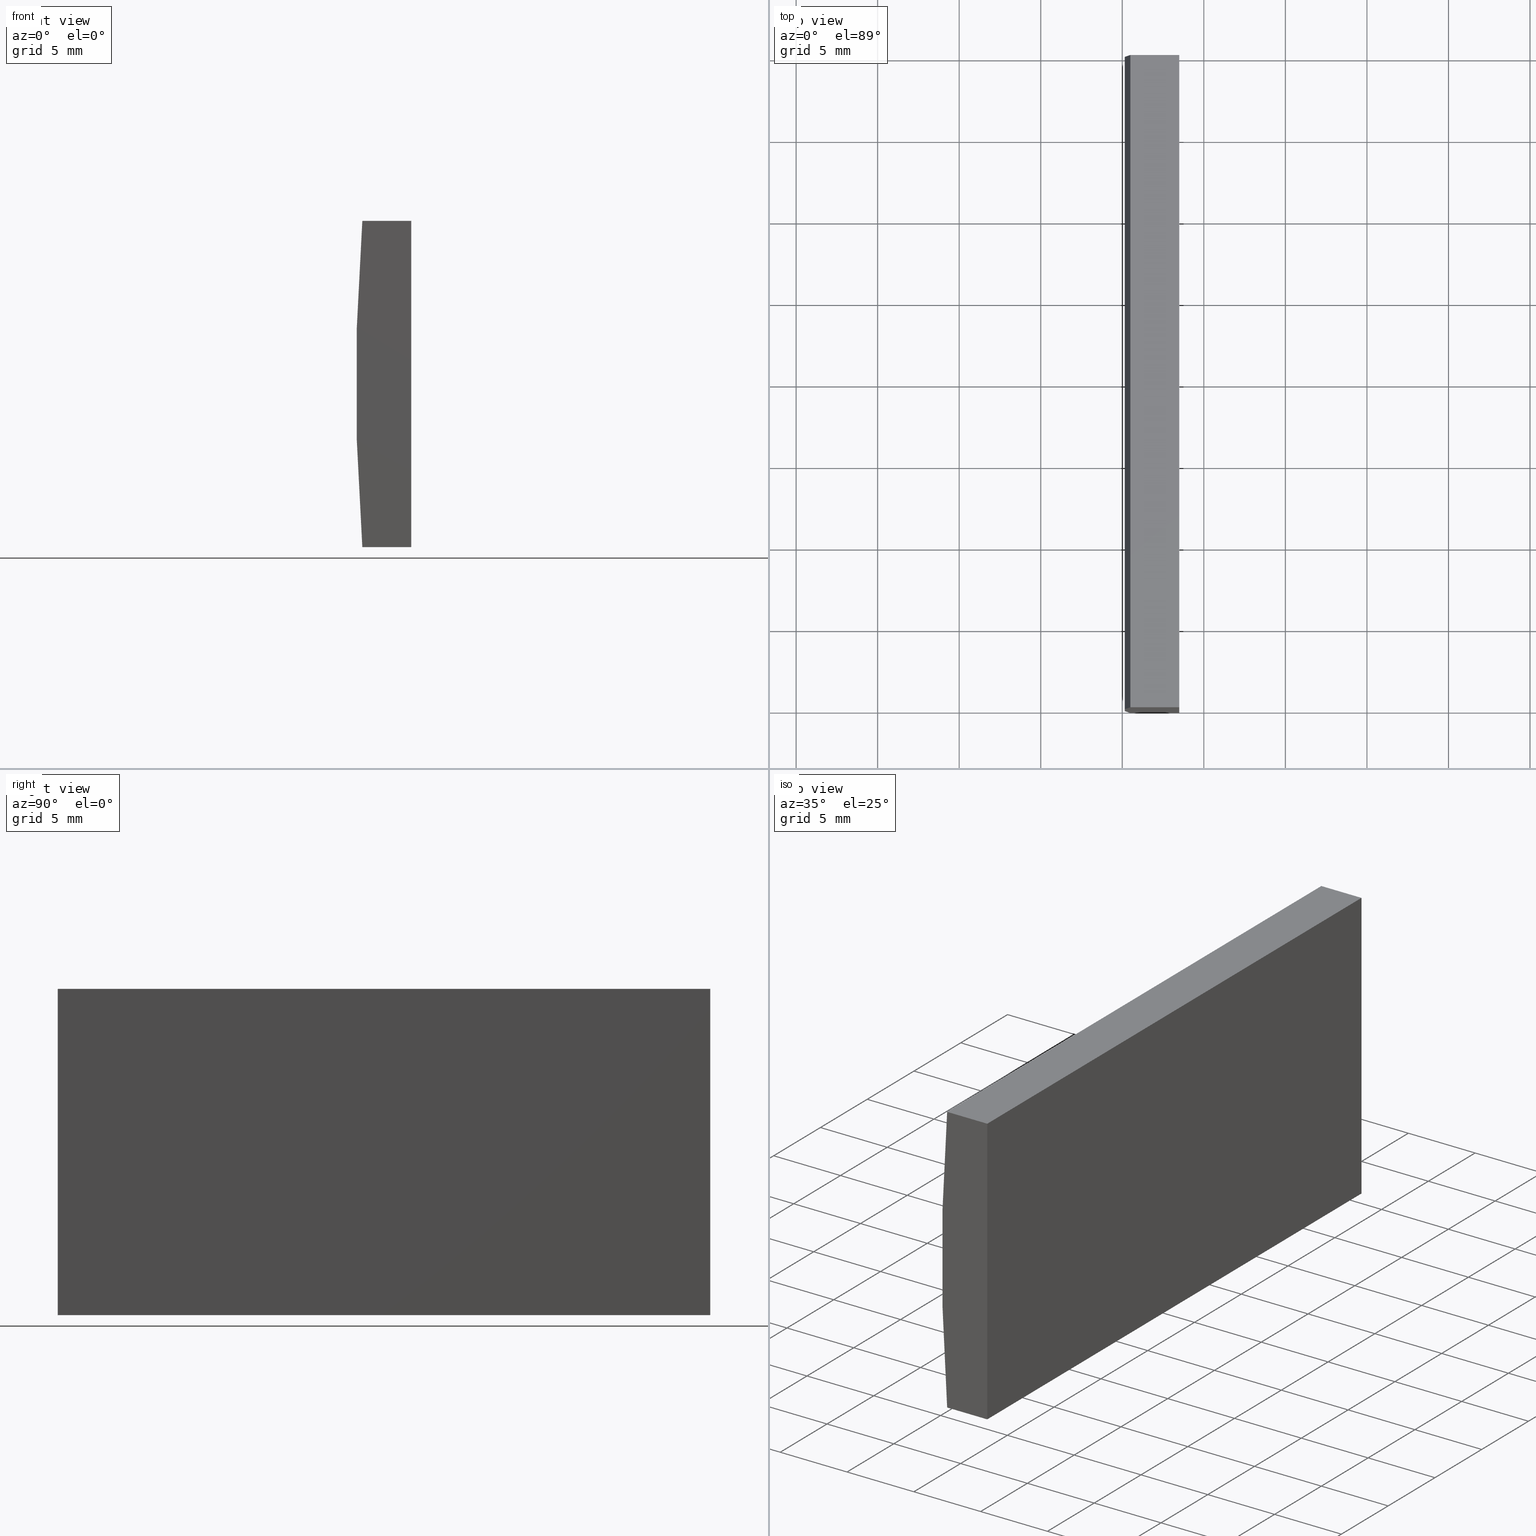
[diagram: canonical four-view strip — front | top / right | iso, engineering-drawing reading convention]
A machine part, canonical four-view strip (front | top / right | iso — engineering-drawing reading convention). The complete STEP part file that produces these views, byte-faithful:
ISO-10303-21;
HEADER;
FILE_DESCRIPTION (( 'STEP AP214' ),
    '1' );
FILE_NAME ('155052.STEP',
    '2019-06-18T06:18:10',
    ( 'user' ),
    ( '΢���й�' ),
    'SwSTEP 2.0',
    'SolidWorks 2016',
    '' );
FILE_SCHEMA (( 'AUTOMOTIVE_DESIGN' ));
ENDSEC;

DATA;
#1 =( NAMED_UNIT ( * ) SI_UNIT ( $, .STERADIAN. ) SOLID_ANGLE_UNIT ( ) );
#2 =( NAMED_UNIT ( * ) PLANE_ANGLE_UNIT ( ) SI_UNIT ( $, .RADIAN. ) );
#3 =( GEOMETRIC_REPRESENTATION_CONTEXT ( 3 ) GLOBAL_UNCERTAINTY_ASSIGNED_CONTEXT ( ( #94 ) ) GLOBAL_UNIT_ASSIGNED_CONTEXT ( ( #161, #26, #1 ) ) REPRESENTATION_CONTEXT ( 'NONE', 'WORKASPACE' ) );
#4 = CARTESIAN_POINT ( 'NONE',  ( -124.5073678108264800, 0.0000000000000000000, 10.00000000000000000 ) ) ;
#5 = EDGE_LOOP ( 'NONE', ( #71, #97, #165, #143 ) ) ;
#6 = ADVANCED_FACE ( 'NONE', ( #111 ), #149, .F. ) ;
#7 = DIRECTION ( 'NONE',  ( 0.0000000000000000000, 0.0000000000000000000, 1.000000000000000000 ) ) ;
#8 =( GEOMETRIC_REPRESENTATION_CONTEXT ( 3 ) GLOBAL_UNCERTAINTY_ASSIGNED_CONTEXT ( ( #188 ) ) GLOBAL_UNIT_ASSIGNED_CONTEXT ( ( #117, #13, #60 ) ) REPRESENTATION_CONTEXT ( 'NONE', 'WORKASPACE' ) );
#9 = VERTEX_POINT ( 'NONE', #43 ) ;
#10 = LINE ( 'NONE', #4, #156 ) ;
#11 = CARTESIAN_POINT ( 'NONE',  ( -121.5047956651487300, 40.00000000000000000, -9.999999999999985800 ) ) ;
#12 = APPLICATION_CONTEXT ( 'automotive_design' ) ;
#13 =( NAMED_UNIT ( * ) PLANE_ANGLE_UNIT ( ) SI_UNIT ( $, .RADIAN. ) );
#14 = CARTESIAN_POINT ( 'NONE',  ( -124.5073678108264900, 0.0000000000000000000, -10.00000000000000000 ) ) ;
#15 = SURFACE_STYLE_FILL_AREA ( #125 ) ;
#16 = AXIS2_PLACEMENT_3D ( 'NONE', #196, #189, #63 ) ;
#17 = DIRECTION ( 'NONE',  ( -0.0000000000000000000, -1.000000000000000000, -0.0000000000000000000 ) ) ;
#18 = DIRECTION ( 'NONE',  ( 0.0000000000000000000, -0.0000000000000000000, 1.000000000000000000 ) ) ;
#19 = DIRECTION ( 'NONE',  ( 0.0000000000000000000, 1.000000000000000000, 0.0000000000000000000 ) ) ;
#20 = VERTEX_POINT ( 'NONE', #109 ) ;
#21 = PRODUCT_RELATED_PRODUCT_CATEGORY ( 'part', '', ( #173 ) ) ;
#22 = CARTESIAN_POINT ( 'NONE',  ( -124.5073678108264900, 40.00000000000000000, -10.00000000000000000 ) ) ;
#23 = LINE ( 'NONE', #78, #187 ) ;
#24 = PRODUCT_DEFINITION_FORMATION_WITH_SPECIFIED_SOURCE ( '�κ�', '', #173, .NOT_KNOWN. ) ;
#25 = CIRCLE ( 'NONE', #193, 129.2500000000000000 ) ;
#26 =( NAMED_UNIT ( * ) PLANE_ANGLE_UNIT ( ) SI_UNIT ( $, .RADIAN. ) );
#27 =( NAMED_UNIT ( * ) SI_UNIT ( $, .STERADIAN. ) SOLID_ANGLE_UNIT ( ) );
#28 = ORIENTED_EDGE ( 'NONE', *, *, #138, .T. ) ;
#29 = CARTESIAN_POINT ( 'NONE',  ( -124.5073678108264900, 0.0000000000000000000, -10.00000000000000000 ) ) ;
#30 = ADVANCED_BREP_SHAPE_REPRESENTATION ( '155052', ( #202, #91 ), #190 ) ;
#31 = VECTOR ( 'NONE', #118, 1000.000000000000000 ) ;
#32 = AXIS2_PLACEMENT_3D ( 'NONE', #195, #84, #54 ) ;
#33 = VECTOR ( 'NONE', #17, 1000.000000000000000 ) ;
#34 = EDGE_LOOP ( 'NONE', ( #93, #39, #136, #102 ) ) ;
#35 = PLANE ( 'NONE',  #123 ) ;
#36 = CARTESIAN_POINT ( 'NONE',  ( -124.5073678108264800, 40.00000000000000000, 10.00000000000000000 ) ) ;
#37 = CARTESIAN_POINT ( 'NONE',  ( -124.5073678108264800, 40.00000000000000000, 10.00000000000000000 ) ) ;
#38 = CARTESIAN_POINT ( 'NONE',  ( 0.0000000000000000000, 0.0000000000000000000, 0.0000000000000000000 ) ) ;
#39 = ORIENTED_EDGE ( 'NONE', *, *, #154, .F. ) ;
#40 = PRESENTATION_STYLE_ASSIGNMENT (( #96 ) ) ;
#41 = ORIENTED_EDGE ( 'NONE', *, *, #98, .T. ) ;
#42 = EDGE_CURVE ( 'NONE', #120, #172, #134, .T. ) ;
#43 = CARTESIAN_POINT ( 'NONE',  ( -124.5073678108264800, 0.0000000000000000000, 10.00000000000000000 ) ) ;
#44 = COLOUR_RGB ( '',1.000000000000000000, 1.000000000000000000, 1.000000000000000000 ) ;
#45 = EDGE_CURVE ( 'NONE', #9, #20, #10, .T. ) ;
#46 = EDGE_LOOP ( 'NONE', ( #177, #82, #192, #158 ) ) ;
#47 = CARTESIAN_POINT ( 'NONE',  ( 4.355204334851265500, 40.00000000000000000, 4.286263797015675000E-017 ) ) ;
#48 = DIRECTION ( 'NONE',  ( 0.0000000000000000000, -0.0000000000000000000, 1.000000000000000000 ) ) ;
#49 = ORIENTED_EDGE ( 'NONE', *, *, #198, .T. ) ;
#50 = FILL_AREA_STYLE ('',( #182 ) ) ;
#51 = VERTEX_POINT ( 'NONE', #81 ) ;
#52 = CARTESIAN_POINT ( 'NONE',  ( -121.5047956651487300, 0.0000000000000000000, -9.999999999999985800 ) ) ;
#53 = FACE_OUTER_BOUND ( 'NONE', #85, .T. ) ;
#54 = DIRECTION ( 'NONE',  ( 1.000000000000000000, 0.0000000000000000000, 4.621966478904336400E-015 ) ) ;
#55 = EDGE_CURVE ( 'NONE', #120, #175, #159, .T. ) ;
#56 = DIRECTION ( 'NONE',  ( -0.0000000000000000000, -1.000000000000000000, -0.0000000000000000000 ) ) ;
#57 = PLANE ( 'NONE',  #151 ) ;
#58 = ORIENTED_EDGE ( 'NONE', *, *, #42, .T. ) ;
#59 = DIRECTION ( 'NONE',  ( 0.0000000000000000000, 0.0000000000000000000, -1.000000000000000000 ) ) ;
#60 =( NAMED_UNIT ( * ) SI_UNIT ( $, .STERADIAN. ) SOLID_ANGLE_UNIT ( ) );
#61 = VECTOR ( 'NONE', #183, 1000.000000000000000 ) ;
#62 = ADVANCED_FACE ( 'NONE', ( #127 ), #57, .F. ) ;
#63 = DIRECTION ( 'NONE',  ( 0.0000000000000000000, 0.0000000000000000000, 1.000000000000000000 ) ) ;
#64 = EDGE_LOOP ( 'NONE', ( #116, #105, #28, #49 ) ) ;
#65 = CARTESIAN_POINT ( 'NONE',  ( -121.5047956651487300, 40.00000000000000000, -9.999999999999985800 ) ) ;
#66 = VERTEX_POINT ( 'NONE', #52 ) ;
#67 = ORIENTED_EDGE ( 'NONE', *, *, #154, .T. ) ;
#68 = PRODUCT_DEFINITION ( 'δ֪', '', #24, #75 ) ;
#69 = FILL_AREA_STYLE_COLOUR ( '', #44 ) ;
#70 = LINE ( 'NONE', #37, #133 ) ;
#71 = ORIENTED_EDGE ( 'NONE', *, *, #45, .T. ) ;
#72 = VECTOR ( 'NONE', #73, 1000.000000000000000 ) ;
#73 = DIRECTION ( 'NONE',  ( -0.0000000000000000000, -1.000000000000000000, -0.0000000000000000000 ) ) ;
#74 = PLANE ( 'NONE',  #160 ) ;
#75 = PRODUCT_DEFINITION_CONTEXT ( 'detailed design', #167, 'design' ) ;
#76 = CARTESIAN_POINT ( 'NONE',  ( -121.5047956651487300, 0.0000000000000000000, -9.999999999999985800 ) ) ;
#77 = DIRECTION ( 'NONE',  ( 0.0000000000000000000, 1.000000000000000000, 0.0000000000000000000 ) ) ;
#78 = CARTESIAN_POINT ( 'NONE',  ( -121.5047956651487300, 40.00000000000000000, 10.00000000000000000 ) ) ;
#79 = VECTOR ( 'NONE', #99, 1000.000000000000000 ) ;
#80 = ADVANCED_FACE ( 'NONE', ( #124 ), #35, .T. ) ;
#81 = CARTESIAN_POINT ( 'NONE',  ( -121.5047956651487300, 40.00000000000000000, 10.00000000000000000 ) ) ;
#82 = ORIENTED_EDGE ( 'NONE', *, *, #98, .F. ) ;
#83 = DIRECTION ( 'NONE',  ( 1.000000000000000000, 0.0000000000000000000, 0.0000000000000000000 ) ) ;
#84 = DIRECTION ( 'NONE',  ( -4.621966478904336400E-015, 0.0000000000000000000, 1.000000000000000000 ) ) ;
#85 = EDGE_LOOP ( 'NONE', ( #67, #171, #204, #41 ) ) ;
#86 = DIRECTION ( 'NONE',  ( 1.000000000000000000, 0.0000000000000000000, 0.0000000000000000000 ) ) ;
#87 = LINE ( 'NONE', #29, #145 ) ;
#88 = APPLICATION_PROTOCOL_DEFINITION ( 'draft international standard', 'automotive_design', 1998, #167 ) ;
#89 = APPLICATION_PROTOCOL_DEFINITION ( 'draft international standard', 'automotive_design', 1998, #12 ) ;
#90 = SURFACE_SIDE_STYLE ('',( #15 ) ) ;
#91 = AXIS2_PLACEMENT_3D ( 'NONE', #38, #7, #86 ) ;
#92 = EDGE_LOOP ( 'NONE', ( #110, #203, #185, #58 ) ) ;
#93 = ORIENTED_EDGE ( 'NONE', *, *, #132, .F. ) ;
#94 = UNCERTAINTY_MEASURE_WITH_UNIT (LENGTH_MEASURE( 1.000000000000000100E-005 ), #161, 'distance_accuracy_value', 'NONE');
#95 = VERTEX_POINT ( 'NONE', #65 ) ;
#96 = SURFACE_STYLE_USAGE ( .BOTH. , #168 ) ;
#97 = ORIENTED_EDGE ( 'NONE', *, *, #201, .F. ) ;
#98 = EDGE_CURVE ( 'NONE', #95, #66, #176, .T. ) ;
#99 = DIRECTION ( 'NONE',  ( -0.0000000000000000000, -0.0000000000000000000, -1.000000000000000000 ) ) ;
#100 = DIRECTION ( 'NONE',  ( 0.0000000000000000000, 0.0000000000000000000, 1.000000000000000000 ) ) ;
#101 = SHAPE_DEFINITION_REPRESENTATION ( #152, #30 ) ;
#102 = ORIENTED_EDGE ( 'NONE', *, *, #45, .F. ) ;
#103 = LINE ( 'NONE', #22, #31 ) ;
#104 = PRESENTATION_STYLE_ASSIGNMENT (( #150 ) ) ;
#105 = ORIENTED_EDGE ( 'NONE', *, *, #178, .T. ) ;
#106 = LINE ( 'NONE', #11, #79 ) ;
#107 = PRESENTATION_LAYER_ASSIGNMENT (  '', '', ( #166 ) ) ;
#108 = COLOUR_RGB ( '',1.000000000000000000, 1.000000000000000000, 1.000000000000000000 ) ;
#109 = CARTESIAN_POINT ( 'NONE',  ( -121.5047956651487300, 0.0000000000000000000, 10.00000000000000000 ) ) ;
#110 = ORIENTED_EDGE ( 'NONE', *, *, #132, .T. ) ;
#111 = FACE_OUTER_BOUND ( 'NONE', #5, .T. ) ;
#112 =( LENGTH_UNIT ( ) NAMED_UNIT ( * ) SI_UNIT ( .MILLI., .METRE. ) );
#113 = PRESENTATION_LAYER_ASSIGNMENT (  '', '', ( #141 ) ) ;
#114 = CYLINDRICAL_SURFACE ( 'NONE', #119, 129.2500000000000000 ) ;
#115 = DIRECTION ( 'NONE',  ( 0.0000000000000000000, 0.0000000000000000000, -1.000000000000000000 ) ) ;
#116 = ORIENTED_EDGE ( 'NONE', *, *, #55, .T. ) ;
#117 =( LENGTH_UNIT ( ) NAMED_UNIT ( * ) SI_UNIT ( .MILLI., .METRE. ) );
#118 = DIRECTION ( 'NONE',  ( -1.000000000000000000, -0.0000000000000000000, -4.621966478904335600E-015 ) ) ;
#119 = AXIS2_PLACEMENT_3D ( 'NONE', #135, #129, #115 ) ;
#120 = VERTEX_POINT ( 'NONE', #153 ) ;
#121 = EDGE_CURVE ( 'NONE', #175, #9, #70, .T. ) ;
#122 = DIRECTION ( 'NONE',  ( -1.000000000000000000, 0.0000000000000000000, 0.0000000000000000000 ) ) ;
#123 = AXIS2_PLACEMENT_3D ( 'NONE', #47, #77, #18 ) ;
#124 = FACE_OUTER_BOUND ( 'NONE', #64, .T. ) ;
#125 = FILL_AREA_STYLE ('',( #69 ) ) ;
#126 = CARTESIAN_POINT ( 'NONE',  ( -121.5047956651487300, 40.00000000000000000, -9.999999999999985800 ) ) ;
#127 = FACE_OUTER_BOUND ( 'NONE', #34, .T. ) ;
#128 = CLOSED_SHELL ( 'NONE', ( #197, #6, #163, #181, #80, #62 ) ) ;
#129 = DIRECTION ( 'NONE',  ( -0.0000000000000000000, -1.000000000000000000, -0.0000000000000000000 ) ) ;
#130 = CARTESIAN_POINT ( 'NONE',  ( -124.5073678108264900, 40.00000000000000000, -10.00000000000000000 ) ) ;
#131 = UNCERTAINTY_MEASURE_WITH_UNIT (LENGTH_MEASURE( 1.000000000000000100E-005 ), #112, 'distance_accuracy_value', 'NONE');
#132 = EDGE_CURVE ( 'NONE', #172, #9, #25, .T. ) ;
#133 = VECTOR ( 'NONE', #56, 1000.000000000000000 ) ;
#134 = LINE ( 'NONE', #130, #33 ) ;
#135 = CARTESIAN_POINT ( 'NONE',  ( 4.355204334851265500, 40.00000000000000000, 4.286263797015675000E-017 ) ) ;
#136 = ORIENTED_EDGE ( 'NONE', *, *, #169, .F. ) ;
#137 = FACE_OUTER_BOUND ( 'NONE', #92, .T. ) ;
#138 = EDGE_CURVE ( 'NONE', #51, #95, #106, .T. ) ;
#139 = CARTESIAN_POINT ( 'NONE',  ( -121.5047956651487300, 40.00000000000000000, -9.999999999999985800 ) ) ;
#140 = FACE_OUTER_BOUND ( 'NONE', #46, .T. ) ;
#141 = STYLED_ITEM ( 'NONE', ( #104 ), #202 ) ;
#142 = DIRECTION ( 'NONE',  ( -0.0000000000000000000, -1.000000000000000000, -0.0000000000000000000 ) ) ;
#143 = ORIENTED_EDGE ( 'NONE', *, *, #121, .T. ) ;
#144 = AXIS2_PLACEMENT_3D ( 'NONE', #174, #59, #199 ) ;
#145 = VECTOR ( 'NONE', #164, 1000.000000000000000 ) ;
#146 = MECHANICAL_DESIGN_GEOMETRIC_PRESENTATION_REPRESENTATION (  '', ( #166 ), #8 ) ;
#147 = PRODUCT_CONTEXT ( 'NONE', #12, 'mechanical' ) ;
#148 = CARTESIAN_POINT ( 'NONE',  ( 4.355204334851265500, 0.0000000000000000000, 4.286263797015675000E-017 ) ) ;
#149 = PLANE ( 'NONE',  #144 ) ;
#150 = SURFACE_STYLE_USAGE ( .BOTH. , #90 ) ;
#151 = AXIS2_PLACEMENT_3D ( 'NONE', #148, #19, #48 ) ;
#152 = PRODUCT_DEFINITION_SHAPE ( 'NONE', 'NONE',  #68 ) ;
#153 = CARTESIAN_POINT ( 'NONE',  ( -124.5073678108264900, 40.00000000000000000, -10.00000000000000000 ) ) ;
#154 = EDGE_CURVE ( 'NONE', #66, #172, #87, .T. ) ;
#155 = CARTESIAN_POINT ( 'NONE',  ( -124.5073678108264800, 40.00000000000000000, 10.00000000000000000 ) ) ;
#156 = VECTOR ( 'NONE', #83, 1000.000000000000000 ) ;
#157 = MECHANICAL_DESIGN_GEOMETRIC_PRESENTATION_REPRESENTATION (  '', ( #141 ), #3 ) ;
#158 = ORIENTED_EDGE ( 'NONE', *, *, #201, .T. ) ;
#159 = CIRCLE ( 'NONE', #16, 129.2500000000000000 ) ;
#160 = AXIS2_PLACEMENT_3D ( 'NONE', #139, #122, #100 ) ;
#161 =( LENGTH_UNIT ( ) NAMED_UNIT ( * ) SI_UNIT ( .MILLI., .METRE. ) );
#162 = LINE ( 'NONE', #76, #61 ) ;
#163 = ADVANCED_FACE ( 'NONE', ( #140 ), #74, .F. ) ;
#164 = DIRECTION ( 'NONE',  ( -1.000000000000000000, -0.0000000000000000000, -4.621966478904335600E-015 ) ) ;
#165 = ORIENTED_EDGE ( 'NONE', *, *, #178, .F. ) ;
#166 = STYLED_ITEM ( 'NONE', ( #40 ), #30 ) ;
#167 = APPLICATION_CONTEXT ( 'automotive_design' ) ;
#168 = SURFACE_SIDE_STYLE ('',( #180 ) ) ;
#169 = EDGE_CURVE ( 'NONE', #20, #66, #162, .T. ) ;
#170 = LINE ( 'NONE', #155, #194 ) ;
#171 = ORIENTED_EDGE ( 'NONE', *, *, #42, .F. ) ;
#172 = VERTEX_POINT ( 'NONE', #14 ) ;
#173 = PRODUCT ( '155052', '155052', '', ( #147 ) ) ;
#174 = CARTESIAN_POINT ( 'NONE',  ( -124.5073678108264800, 40.00000000000000000, 10.00000000000000000 ) ) ;
#175 = VERTEX_POINT ( 'NONE', #36 ) ;
#176 = LINE ( 'NONE', #126, #72 ) ;
#177 = ORIENTED_EDGE ( 'NONE', *, *, #169, .T. ) ;
#178 = EDGE_CURVE ( 'NONE', #175, #51, #170, .T. ) ;
#179 = DIRECTION ( 'NONE',  ( 0.0000000000000000000, 0.0000000000000000000, 1.000000000000000000 ) ) ;
#180 = SURFACE_STYLE_FILL_AREA ( #50 ) ;
#181 = ADVANCED_FACE ( 'NONE', ( #53 ), #200, .F. ) ;
#182 = FILL_AREA_STYLE_COLOUR ( '', #108 ) ;
#183 = DIRECTION ( 'NONE',  ( -0.0000000000000000000, -0.0000000000000000000, -1.000000000000000000 ) ) ;
#184 = CARTESIAN_POINT ( 'NONE',  ( 4.355204334851265500, 0.0000000000000000000, 4.286263797015675000E-017 ) ) ;
#185 = ORIENTED_EDGE ( 'NONE', *, *, #55, .F. ) ;
#186 = DIRECTION ( 'NONE',  ( 0.0000000000000000000, 1.000000000000000000, 0.0000000000000000000 ) ) ;
#187 = VECTOR ( 'NONE', #142, 1000.000000000000000 ) ;
#188 = UNCERTAINTY_MEASURE_WITH_UNIT (LENGTH_MEASURE( 1.000000000000000100E-005 ), #117, 'distance_accuracy_value', 'NONE');
#189 = DIRECTION ( 'NONE',  ( 0.0000000000000000000, 1.000000000000000000, 0.0000000000000000000 ) ) ;
#190 =( GEOMETRIC_REPRESENTATION_CONTEXT ( 3 ) GLOBAL_UNCERTAINTY_ASSIGNED_CONTEXT ( ( #131 ) ) GLOBAL_UNIT_ASSIGNED_CONTEXT ( ( #112, #2, #27 ) ) REPRESENTATION_CONTEXT ( 'NONE', 'WORKASPACE' ) );
#191 = DIRECTION ( 'NONE',  ( 1.000000000000000000, 0.0000000000000000000, 0.0000000000000000000 ) ) ;
#192 = ORIENTED_EDGE ( 'NONE', *, *, #138, .F. ) ;
#193 = AXIS2_PLACEMENT_3D ( 'NONE', #184, #186, #179 ) ;
#194 = VECTOR ( 'NONE', #191, 1000.000000000000000 ) ;
#195 = CARTESIAN_POINT ( 'NONE',  ( -124.5073678108264900, 40.00000000000000000, -10.00000000000000000 ) ) ;
#196 = CARTESIAN_POINT ( 'NONE',  ( 4.355204334851265500, 40.00000000000000000, 4.286263797015675000E-017 ) ) ;
#197 = ADVANCED_FACE ( 'NONE', ( #137 ), #114, .T. ) ;
#198 = EDGE_CURVE ( 'NONE', #95, #120, #103, .T. ) ;
#199 = DIRECTION ( 'NONE',  ( -1.000000000000000000, 0.0000000000000000000, -0.0000000000000000000 ) ) ;
#200 = PLANE ( 'NONE',  #32 ) ;
#201 = EDGE_CURVE ( 'NONE', #51, #20, #23, .T. ) ;
#202 = MANIFOLD_SOLID_BREP ( '͹̨-����1', #128 ) ;
#203 = ORIENTED_EDGE ( 'NONE', *, *, #121, .F. ) ;
#204 = ORIENTED_EDGE ( 'NONE', *, *, #198, .F. ) ;
ENDSEC;
END-ISO-10303-21;
